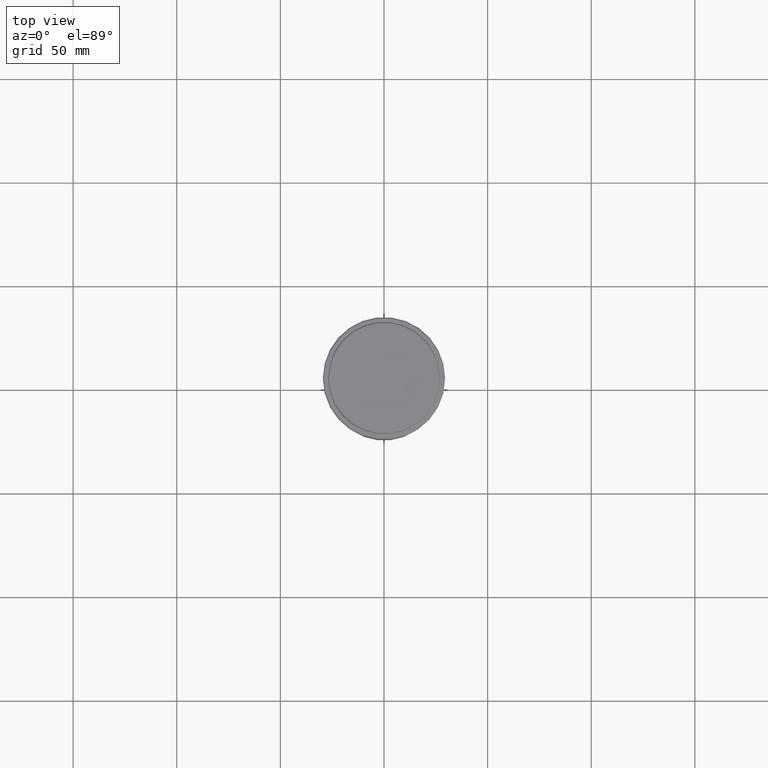
[diagram: clean part render]
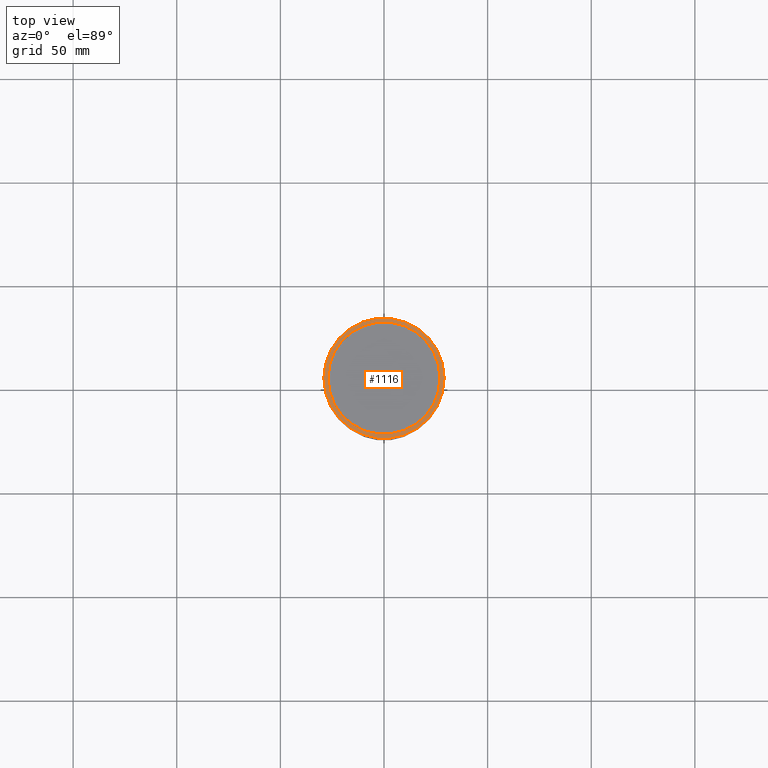
[diagram: same view with one face highlighted and labeled with its STEP entity id]
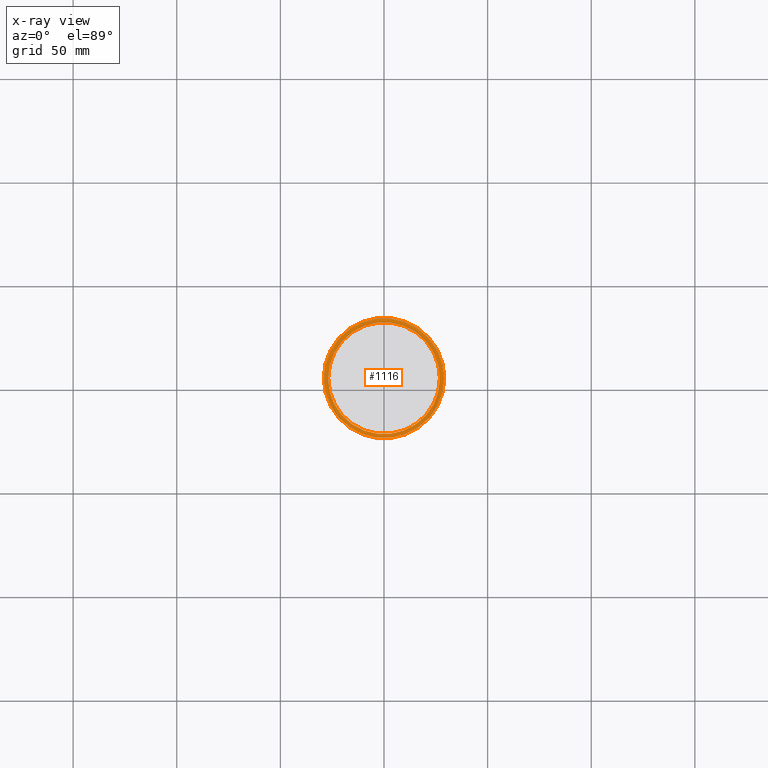
[diagram: x-ray of the same camera — body ghosted, the highlighted face saturated]
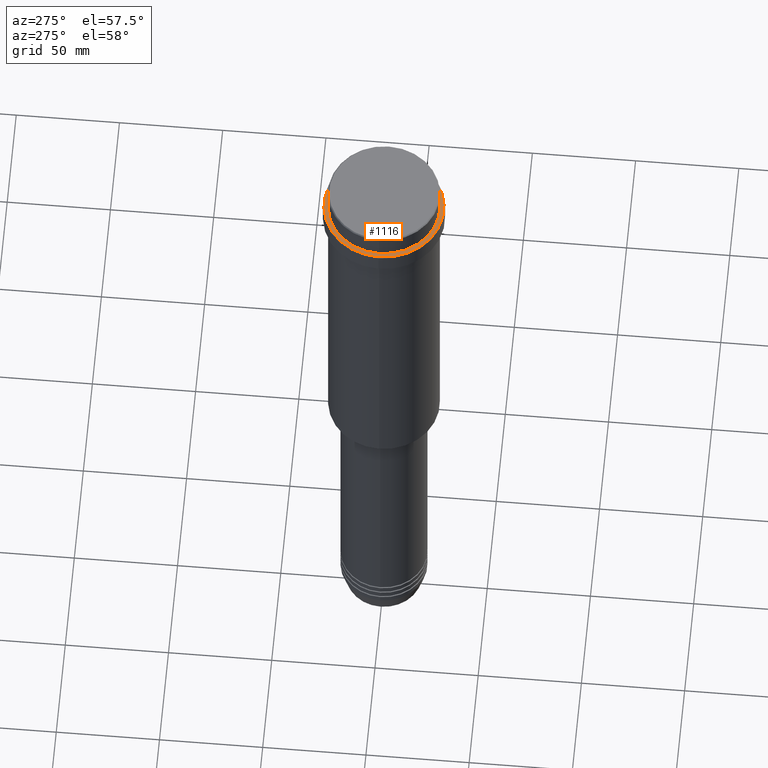
[diagram: same view with one face highlighted and labeled with its STEP entity id]
A machine part, top view. The second image highlights one B-rep face of the part: STEP entity #1116.
The next image is the same camera in x-ray: the body ghosted, the highlighted face saturated — about 0% of this face is hidden behind the body in this view.
A second angle (auxiliary view) of the same face is appended — the face is thin or edge-on in the first view.
In plain terms, the highlighted planar face has unit normal (0, -0, 1).
Its self-contained STEP definition (entity closure, byte-faithful):
#39 = DIRECTION ( 'NONE',  ( -0.000000000000000000, -0.000000000000000000, 1.000000000000000000 ) ) ;
#69 = DIRECTION ( 'NONE',  ( 1.000000000000000000, 0.000000000000000000, 0.000000000000000000 ) ) ;
#101 = CIRCLE ( 'NONE', #676, 29.00000000000002487 ) ;
#145 = DIRECTION ( 'NONE',  ( 0.000000000000000000, 0.000000000000000000, -1.000000000000000000 ) ) ;
#171 = DIRECTION ( 'NONE',  ( -0.000000000000000000, -0.000000000000000000, 1.000000000000000000 ) ) ;
#232 = AXIS2_PLACEMENT_3D ( 'NONE', #504, #515, #928 ) ;
#268 = EDGE_CURVE ( 'NONE', #1387, #816, #1305, .T. ) ;
#352 = CARTESIAN_POINT ( 'NONE',  ( 0.000000000000000000, 0.000000000000000000, -12.00000000000000355 ) ) ;
#360 = VERTEX_POINT ( 'NONE', #407 ) ;
#388 = AXIS2_PLACEMENT_3D ( 'NONE', #1363, #171, #69 ) ;
#406 = CARTESIAN_POINT ( 'NONE',  ( 0.000000000000000000, 26.49999999999999645, -12.00000000000000355 ) ) ;
#407 = CARTESIAN_POINT ( 'NONE',  ( 26.99999999999999645, 0.000000000000000000, -12.00000000000000355 ) ) ;
#504 = CARTESIAN_POINT ( 'NONE',  ( 0.000000000000000000, 0.000000000000000000, -12.00000000000000355 ) ) ;
#515 = DIRECTION ( 'NONE',  ( 0.000000000000000000, 0.000000000000000000, -1.000000000000000000 ) ) ;
#528 = FACE_OUTER_BOUND ( 'NONE', #1093, .T. ) ;
#594 = DIRECTION ( 'NONE',  ( 1.000000000000000000, 0.000000000000000000, 0.000000000000000000 ) ) ;
#622 = FACE_BOUND ( 'NONE', #991, .T. ) ;
#667 = CARTESIAN_POINT ( 'NONE',  ( -29.00000000000002487, 0.000000000000000000, -12.00000000000000355 ) ) ;
#676 = AXIS2_PLACEMENT_3D ( 'NONE', #352, #39, #594 ) ;
#688 = CARTESIAN_POINT ( 'NONE',  ( 29.00000000000002487, 3.582091887506009394E-15, -12.00000000000000355 ) ) ;
#713 = AXIS2_PLACEMENT_3D ( 'NONE', #406, #1047, #740 ) ;
#740 = DIRECTION ( 'NONE',  ( 1.000000000000000000, 0.000000000000000000, 0.000000000000000000 ) ) ;
#761 = CIRCLE ( 'NONE', #933, 26.99999999999999645 ) ;
#815 = PLANE ( 'NONE',  #713 ) ;
#816 = VERTEX_POINT ( 'NONE', #667 ) ;
#835 = ORIENTED_EDGE ( 'NONE', *, *, #1021, .T. ) ;
#928 = DIRECTION ( 'NONE',  ( 1.000000000000000000, 0.000000000000000000, 0.000000000000000000 ) ) ;
#933 = AXIS2_PLACEMENT_3D ( 'NONE', #1340, #145, #1136 ) ;
#951 = ORIENTED_EDGE ( 'NONE', *, *, #1071, .T. ) ;
#969 = CARTESIAN_POINT ( 'NONE',  ( -26.99999999999999645, 3.306546357697853339E-15, -12.00000000000000355 ) ) ;
#991 = EDGE_LOOP ( 'NONE', ( #951, #835 ) ) ;
#1021 = EDGE_CURVE ( 'NONE', #1270, #360, #761, .T. ) ;
#1047 = DIRECTION ( 'NONE',  ( 0.000000000000000000, -0.000000000000000000, 1.000000000000000000 ) ) ;
#1055 = EDGE_CURVE ( 'NONE', #816, #1387, #101, .T. ) ;
#1071 = EDGE_CURVE ( 'NONE', #360, #1270, #1143, .T. ) ;
#1093 = EDGE_LOOP ( 'NONE', ( #1299, #1349 ) ) ;
#1116 = ADVANCED_FACE ( 'NONE', ( #528, #622 ), #815, .T. ) ;
#1136 = DIRECTION ( 'NONE',  ( 1.000000000000000000, 0.000000000000000000, 0.000000000000000000 ) ) ;
#1143 = CIRCLE ( 'NONE', #232, 26.99999999999999645 ) ;
#1270 = VERTEX_POINT ( 'NONE', #969 ) ;
#1299 = ORIENTED_EDGE ( 'NONE', *, *, #1055, .T. ) ;
#1305 = CIRCLE ( 'NONE', #388, 29.00000000000002487 ) ;
#1340 = CARTESIAN_POINT ( 'NONE',  ( 0.000000000000000000, 0.000000000000000000, -12.00000000000000355 ) ) ;
#1349 = ORIENTED_EDGE ( 'NONE', *, *, #268, .T. ) ;
#1363 = CARTESIAN_POINT ( 'NONE',  ( 0.000000000000000000, 0.000000000000000000, -12.00000000000000355 ) ) ;
#1387 = VERTEX_POINT ( 'NONE', #688 ) ;